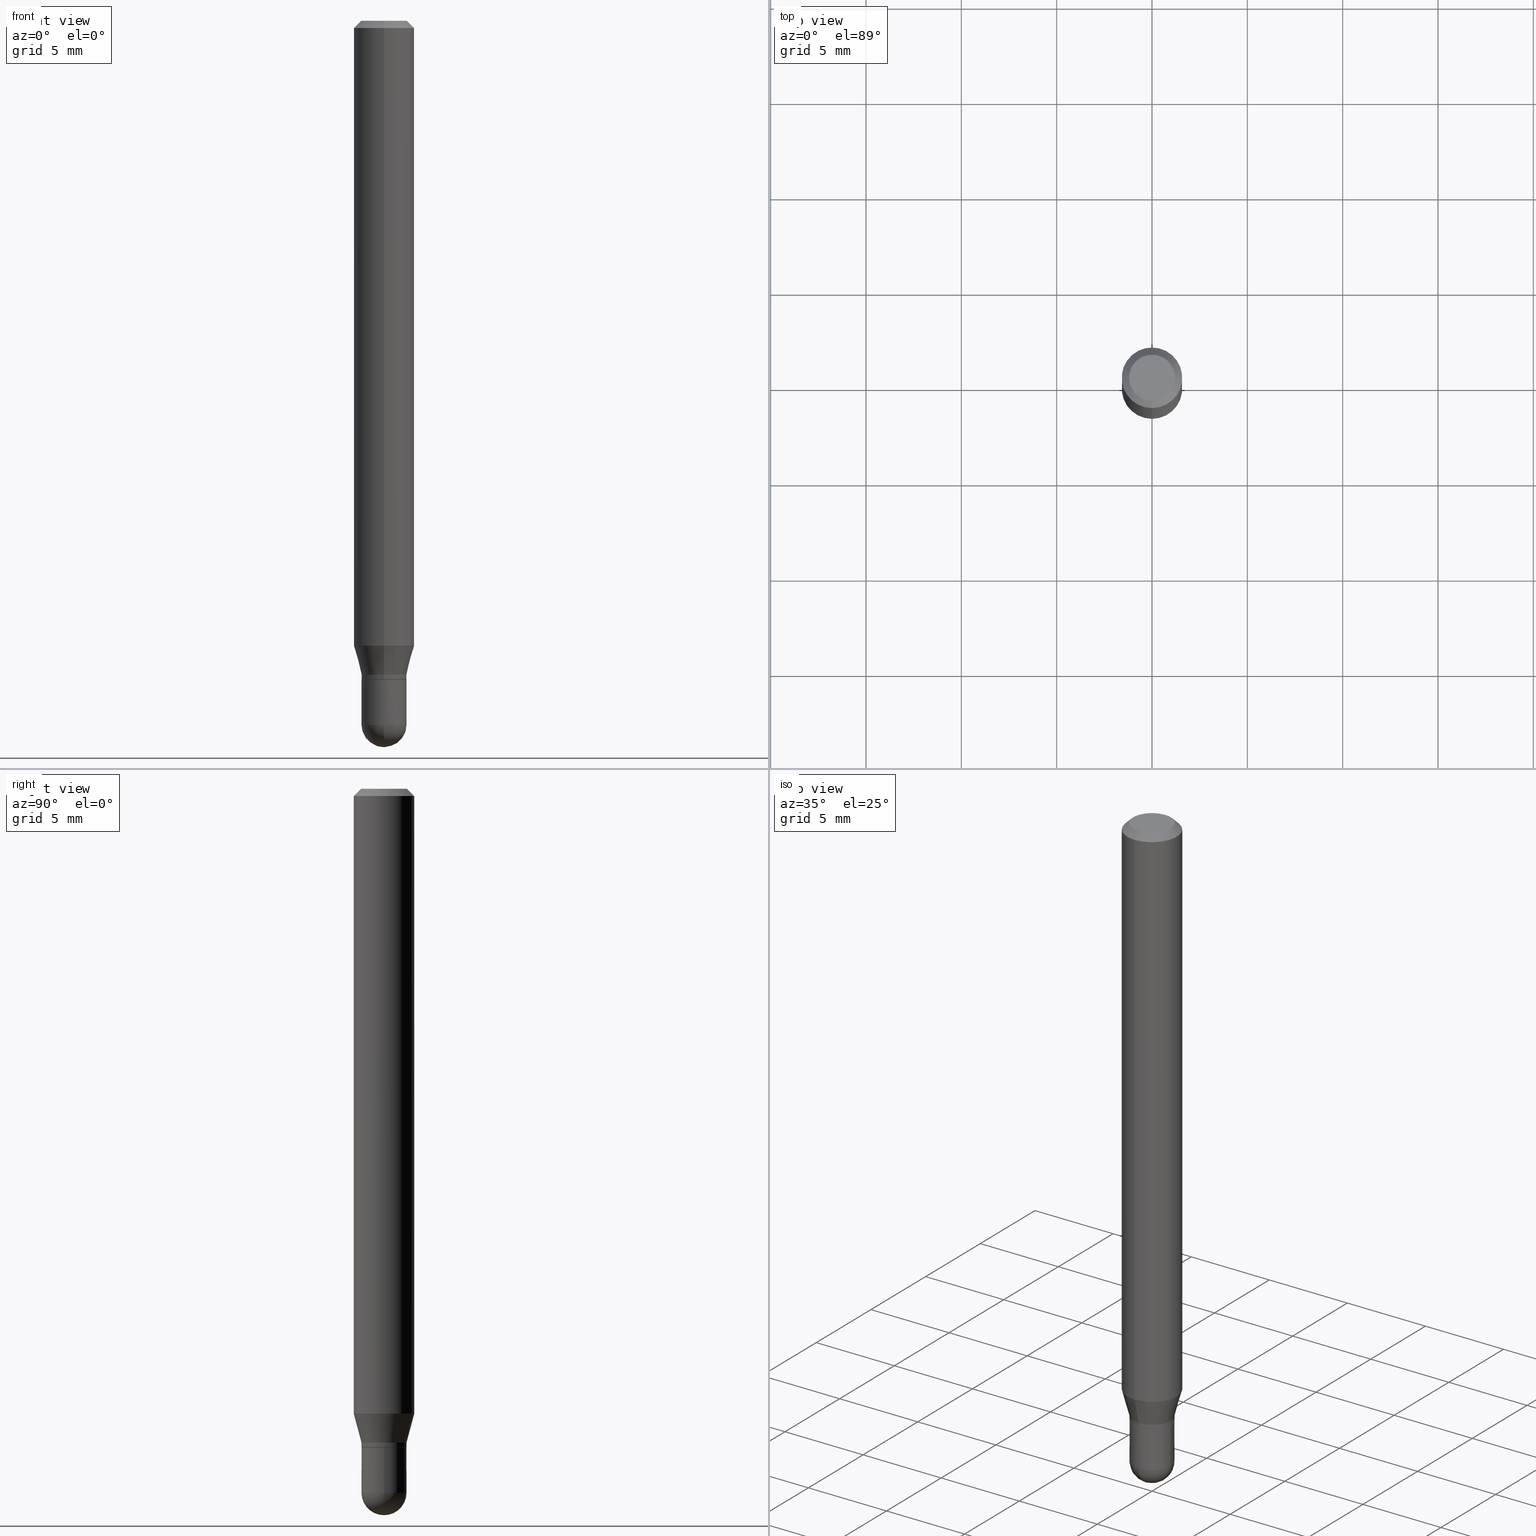
[diagram: canonical four-view strip — front | top / right | iso, engineering-drawing reading convention]
A machine part, canonical four-view strip (front | top / right | iso — engineering-drawing reading convention). The complete STEP part file that produces these views, byte-faithful:
ISO-10303-21;
HEADER;
FILE_DESCRIPTION (( 'STEP AP203' ),
    '1' );
FILE_NAME ('00803.STEP',
    '2024-03-07T18:26:28',
    ( '' ),
    ( '' ),
    'SwSTEP 2.0',
    'SolidWorks 2023',
    '' );
FILE_SCHEMA (( 'CONFIG_CONTROL_DESIGN' ));
ENDSEC;

DATA;
#1 = DIRECTION ( 'NONE',  ( 6.982962677686265922E-15, 1.000000000000000000, -5.874941921858636379E-15 ) ) ;
#2 = CC_DESIGN_PERSON_AND_ORGANIZATION_ASSIGNMENT ( #189, #341, ( #206 ) ) ;
#3 =( CONVERSION_BASED_UNIT ( 'INCH', #158 ) LENGTH_UNIT ( ) NAMED_UNIT ( #434 ) );
#4 = AXIS2_PLACEMENT_3D ( 'NONE', #346, #34, #142 ) ;
#5 = AXIS2_PLACEMENT_3D ( 'NONE', #402, #153, #314 ) ;
#6 = AXIS2_PLACEMENT_3D ( 'NONE', #431, #458, #95 ) ;
#7 = DIRECTION ( 'NONE',  ( 1.000000000000000000, -6.982962677686260400E-15, 0.000000000000000000 ) ) ;
#8 = FACE_OUTER_BOUND ( 'NONE', #49, .T. ) ;
#9 = DIRECTION ( 'NONE',  ( -6.982962677686265922E-15, -1.000000000000000000, 3.483106191921935554E-15 ) ) ;
#10 = AXIS2_PLACEMENT_3D ( 'NONE', #21, #175, #136 ) ;
#11 = ORIENTED_EDGE ( 'NONE', *, *, #430, .F. ) ;
#12 = EDGE_CURVE ( 'NONE', #499, #291, #382, .T. ) ;
#13 = ORIENTED_EDGE ( 'NONE', *, *, #207, .T. ) ;
#14 = ORIENTED_EDGE ( 'NONE', *, *, #192, .T. ) ;
#15 = VECTOR ( 'NONE', #116, 39.37007874015748854 ) ;
#16 = AXIS2_PLACEMENT_3D ( 'NONE', #184, #340, #470 ) ;
#17 = ORIENTED_EDGE ( 'NONE', *, *, #167, .F. ) ;
#18 = DESIGN_CONTEXT ( 'detailed design', #43, 'design' ) ;
#19 = DIRECTION ( 'NONE',  ( -2.445468806185136597E-29, 3.491481338843145583E-15, 1.000000000000000000 ) ) ;
#20 = CARTESIAN_POINT ( 'NONE',  ( -0.04649999999999999967, -4.581239001289149837E-15, -1.360000000000000320 ) ) ;
#21 = CARTESIAN_POINT ( 'NONE',  ( 3.301340040986246399E-29, -4.713561167301768134E-15, -1.350000000000000089 ) ) ;
#22 = ORIENTED_EDGE ( 'NONE', *, *, #32, .F. ) ;
#23 = LINE ( 'NONE', #108, #194 ) ;
#24 = DIRECTION ( 'NONE',  ( -1.000000000000000000, 6.982962677686265922E-15, -4.883557194083111780E-29 ) ) ;
#25 = APPROVAL_ROLE ( '' ) ;
#26 = VECTOR ( 'NONE', #252, 39.37007874015748143 ) ;
#27 = ORIENTED_EDGE ( 'NONE', *, *, #241, .T. ) ;
#28 = VECTOR ( 'NONE', #33, 39.37007874015748143 ) ;
#29 = DIRECTION ( 'NONE',  ( -4.851104656540964275E-15, -0.7071067811865500152, -0.7071067811865450192 ) ) ;
#30 = DIRECTION ( 'NONE',  ( -2.445468806185136597E-29, 3.491481338843145583E-15, 1.000000000000000000 ) ) ;
#31 = ORIENTED_EDGE ( 'NONE', *, *, #430, .T. ) ;
#32 = EDGE_CURVE ( 'NONE', #412, #289, #300, .T. ) ;
#33 = DIRECTION ( 'NONE',  ( -2.445468806185136877E-29, 3.491481338843145188E-15, 1.000000000000000000 ) ) ;
#34 = DIRECTION ( 'NONE',  ( 2.445437067397219192E-29, -3.491526790593902555E-15, -1.000000000000000000 ) ) ;
#35 = DIRECTION ( 'NONE',  ( -2.445468806185136597E-29, 3.491481338843145583E-15, 1.000000000000000000 ) ) ;
#36 = CALENDAR_DATE ( 2024, 7, 3 ) ;
#37 = DIRECTION ( 'NONE',  ( -2.445437067397219472E-29, 3.491526790593902555E-15, 1.000000000000000000 ) ) ;
#38 = CIRCLE ( 'NONE', #10, 0.04649999999999993722 ) ;
#39 = FACE_OUTER_BOUND ( 'NONE', #464, .T. ) ;
#40 = APPROVAL ( #385, 'UNSPECIFIED' ) ;
#41 = CARTESIAN_POINT ( 'NONE',  ( 3.550512386545411977E-29, -5.080562733624547023E-15, -1.453500000000000236 ) ) ;
#42 = LINE ( 'NONE', #281, #15 ) ;
#43 = APPLICATION_CONTEXT ( 'configuration controlled 3d designs of mechanical parts and assemblies' ) ;
#44 = DIRECTION ( 'NONE',  ( -2.445468806185136877E-29, 3.491481338843145188E-15, 1.000000000000000000 ) ) ;
#45 = VECTOR ( 'NONE', #313, 39.37007874015748143 ) ;
#46 =( NAMED_UNIT ( * ) SI_UNIT ( $, .STERADIAN. ) SOLID_ANGLE_UNIT ( ) );
#47 = ORIENTED_EDGE ( 'NONE', *, *, #259, .F. ) ;
#48 = CIRCLE ( 'NONE', #205, 0.04649999999999999967 ) ;
#49 = EDGE_LOOP ( 'NONE', ( #22, #255, #140, #17 ) ) ;
#50 = APPROVAL_DATE_TIME ( #403, #40 ) ;
#51 = SHAPE_DEFINITION_REPRESENTATION ( #214, #231 ) ;
#52 = AXIS2_PLACEMENT_3D ( 'NONE', #237, #37, #199 ) ;
#53 = ORIENTED_EDGE ( 'NONE', *, *, #198, .F. ) ;
#54 = ADVANCED_FACE ( 'NONE', ( #414 ), #457, .F. ) ;
#55 = CARTESIAN_POINT ( 'NONE',  ( 3.155316114870427558E-29, -4.505072281246019250E-15, -1.290287187078897890 ) ) ;
#56 = ORIENTED_EDGE ( 'NONE', *, *, #301, .T. ) ;
#57 = DIRECTION ( 'NONE',  ( -2.445437067397219472E-29, 3.491526790593902555E-15, 1.000000000000000000 ) ) ;
#58 = CARTESIAN_POINT ( 'NONE',  ( 4.440892098500625669E-16, 0.06250000000000000000, -2.182204244121189097E-16 ) ) ;
#59 = VERTEX_POINT ( 'NONE', #190 ) ;
#60 = CYLINDRICAL_SURFACE ( 'NONE', #377, 0.04649999999999993722 ) ;
#61 = CYLINDRICAL_SURFACE ( 'NONE', #162, 0.04649999999999999967 ) ;
#62 = EDGE_LOOP ( 'NONE', ( #148, #14 ) ) ;
#63 = AXIS2_PLACEMENT_3D ( 'NONE', #381, #485, #417 ) ;
#64 = APPROVAL_STATUS ( 'not_yet_approved' ) ;
#65 = EDGE_LOOP ( 'NONE', ( #173, #469, #131, #183 ) ) ;
#66 = FACE_OUTER_BOUND ( 'NONE', #67, .T. ) ;
#67 = EDGE_LOOP ( 'NONE', ( #426, #90, #233, #124, #336 ) ) ;
#68 = EDGE_CURVE ( 'NONE', #499, #412, #465, .T. ) ;
#69 = CARTESIAN_POINT ( 'NONE',  ( 3.554488909790096218E-29, -5.074868126008512823E-15, -1.453500000000000236 ) ) ;
#70 = CARTESIAN_POINT ( 'NONE',  ( 3.668155601095830977E-31, -5.237290185890857728E-17, -0.01500000000000000812 ) ) ;
#71 = AXIS2_PLACEMENT_3D ( 'NONE', #195, #511, #119 ) ;
#72 = VECTOR ( 'NONE', #29, 39.37007874015748143 ) ;
#73 = CC_DESIGN_DATE_AND_TIME_ASSIGNMENT ( #459, #221, ( #488 ) ) ;
#74 = DIRECTION ( 'NONE',  ( -2.445437067397219472E-29, 3.491526790593902555E-15, 1.000000000000000000 ) ) ;
#75 = CARTESIAN_POINT ( 'NONE',  ( -4.364351673553598685E-16, -0.06250000000000446865, -1.290287187078897668 ) ) ;
#76 = PRODUCT ( '00803', '00803', '', ( #109 ) ) ;
#77 = FACE_OUTER_BOUND ( 'NONE', #339, .T. ) ;
#78 = CLOSED_SHELL ( 'NONE', ( #421, #99, #243, #322, #161, #416, #246, #364, #54, #449, #125, #338 ) ) ;
#79 = CIRCLE ( 'NONE', #235, 0.04749999999999999362 ) ;
#80 =( GEOMETRIC_REPRESENTATION_CONTEXT ( 3 ) GLOBAL_UNCERTAINTY_ASSIGNED_CONTEXT ( ( #509 ) ) GLOBAL_UNIT_ASSIGNED_CONTEXT ( ( #3, #480, #46 ) ) REPRESENTATION_CONTEXT ( 'NONE', 'WORKASPACE' ) );
#81 = APPLICATION_PROTOCOL_DEFINITION ( 'international standard', 'config_control_design', 1994, #286 ) ;
#82 = ORIENTED_EDGE ( 'NONE', *, *, #12, .F. ) ;
#83 = FACE_OUTER_BOUND ( 'NONE', #487, .T. ) ;
#84 = EDGE_CURVE ( 'NONE', #226, #409, #147, .T. ) ;
#85 = CARTESIAN_POINT ( 'NONE',  ( 3.554488909790096218E-29, -5.074868126008512823E-15, -1.453500000000000236 ) ) ;
#86 = APPROVAL_PERSON_ORGANIZATION ( #422, #111, #428 ) ;
#87 = ORIENTED_EDGE ( 'NONE', *, *, #32, .T. ) ;
#88 = ORIENTED_EDGE ( 'NONE', *, *, #118, .T. ) ;
#89 = EDGE_CURVE ( 'NONE', #291, #289, #424, .T. ) ;
#90 = ORIENTED_EDGE ( 'NONE', *, *, #146, .T. ) ;
#91 = CARTESIAN_POINT ( 'NONE',  ( 4.440892098500943678E-16, 0.06249999999999995837, -0.01500000000000022669 ) ) ;
#92 = AXIS2_PLACEMENT_3D ( 'NONE', #70, #367, #245 ) ;
#93 = CONICAL_SURFACE ( 'NONE', #283, 0.04649999999999993722, 0.2617993877991500740 ) ;
#94 = VERTEX_POINT ( 'NONE', #370 ) ;
#95 = DIRECTION ( 'NONE',  ( -6.982962677686265133E-15, -1.000000000000000000, 3.491526790593901766E-15 ) ) ;
#96 = DIRECTION ( 'NONE',  ( 6.982962677686265922E-15, 1.000000000000000000, -5.874941921858636379E-15 ) ) ;
#97 = ORIENTED_EDGE ( 'NONE', *, *, #306, .T. ) ;
#98 = CARTESIAN_POINT ( 'NONE',  ( -4.287811248607203282E-16, -0.06250000000000005551, -0.01499999999999979128 ) ) ;
#99 = ADVANCED_FACE ( 'NONE', ( #474 ), #262, .T. ) ;
#100 = DIRECTION ( 'NONE',  ( 1.000000000000000000, -6.982962677686260400E-15, 0.000000000000000000 ) ) ;
#101 = CARTESIAN_POINT ( 'NONE',  ( -3.212162831735349630E-16, -0.04600000000000474543, -1.359999999999999876 ) ) ;
#102 = DIRECTION ( 'NONE',  ( -2.445468806185136597E-29, 3.491481338843145583E-15, 1.000000000000000000 ) ) ;
#103 = CIRCLE ( 'NONE', #319, 0.06250000000000000000 ) ;
#104 = DIRECTION ( 'NONE',  ( -6.982962677686265133E-15, -1.000000000000000000, 5.874941921858638746E-15 ) ) ;
#105 = DIRECTION ( 'NONE',  ( -2.445437067397219472E-29, 3.491526790593902555E-15, 1.000000000000000000 ) ) ;
#106 = COORDINATED_UNIVERSAL_TIME_OFFSET ( 5, 0, .BEHIND. ) ;
#107 = EDGE_LOOP ( 'NONE', ( #376, #87, #483, #82 ) ) ;
#108 = CARTESIAN_POINT ( 'NONE',  ( -3.247077645124109051E-16, -0.04649999999999993722, 1.623559957626162136E-16 ) ) ;
#109 = MECHANICAL_CONTEXT ( 'NONE', #286, 'mechanical' ) ;
#110 = DIRECTION ( 'NONE',  ( -2.445437067397219472E-29, 3.491526790593902555E-15, 1.000000000000000000 ) ) ;
#111 = APPROVAL ( #350, 'UNSPECIFIED' ) ;
#112 = CARTESIAN_POINT ( 'NONE',  ( 0.04649999999999999967, -3.247077645124114474E-16, 2.267422200745110326E-30 ) ) ;
#113 = CARTESIAN_POINT ( 'NONE',  ( 3.550512386545411977E-29, -5.080562733624547023E-15, -1.453500000000000236 ) ) ;
#114 = CLOSED_SHELL ( 'NONE', ( #315, #203, #202, #288, #369 ) ) ;
#115 = EDGE_CURVE ( 'NONE', #226, #222, #42, .T. ) ;
#116 = DIRECTION ( 'NONE',  ( -1.807323732225328562E-15, -0.2588190451025179639, 0.9659258262890690894 ) ) ;
#117 = CALENDAR_DATE ( 2024, 7, 3 ) ;
#118 = EDGE_CURVE ( 'NONE', #494, #244, #444, .T. ) ;
#119 = DIRECTION ( 'NONE',  ( 1.000000000000000000, -6.982962677686260400E-15, 0.000000000000000000 ) ) ;
#120 = DIRECTION ( 'NONE',  ( -6.982962677686265133E-15, -1.000000000000000000, 5.938799986226659171E-15 ) ) ;
#121 = AXIS2_PLACEMENT_3D ( 'NONE', #159, #110, #279 ) ;
#122 = CIRCLE ( 'NONE', #138, 0.04649999999999999967 ) ;
#123 = ORIENTED_EDGE ( 'NONE', *, *, #358, .T. ) ;
#124 = ORIENTED_EDGE ( 'NONE', *, *, #484, .T. ) ;
#125 = ADVANCED_FACE ( 'NONE', ( #8 ), #282, .T. ) ;
#126 = ORIENTED_EDGE ( 'NONE', *, *, #198, .T. ) ;
#127 = AXIS2_PLACEMENT_3D ( 'NONE', #438, #74, #120 ) ;
#128 = CARTESIAN_POINT ( 'NONE',  ( 3.666214947655362494E-29, -5.240069312072735277E-15, -1.500000000000000222 ) ) ;
#129 = AXIS2_PLACEMENT_3D ( 'NONE', #348, #500, #256 ) ;
#130 = APPROVAL_PERSON_ORGANIZATION ( #186, #163, #304 ) ;
#131 = ORIENTED_EDGE ( 'NONE', *, *, #115, .T. ) ;
#132 = ORIENTED_EDGE ( 'NONE', *, *, #182, .F. ) ;
#133 = DIRECTION ( 'NONE',  ( 6.982962677686265922E-15, 1.000000000000000000, -3.483106191921935554E-15 ) ) ;
#134 = ORIENTED_EDGE ( 'NONE', *, *, #482, .F. ) ;
#135 = FACE_OUTER_BOUND ( 'NONE', #213, .T. ) ;
#136 = DIRECTION ( 'NONE',  ( -6.982962677686265133E-15, -1.000000000000000000, 5.874941921858638746E-15 ) ) ;
#137 = CALENDAR_DATE ( 2024, 7, 3 ) ;
#138 = AXIS2_PLACEMENT_3D ( 'NONE', #452, #169, #100 ) ;
#139 = AXIS2_PLACEMENT_3D ( 'NONE', #391, #232, #397 ) ;
#140 = ORIENTED_EDGE ( 'NONE', *, *, #12, .T. ) ;
#141 = CARTESIAN_POINT ( 'NONE',  ( -4.364351673553912750E-16, -0.06250000000000005551, -0.01499999999999979128 ) ) ;
#142 = DIRECTION ( 'NONE',  ( 6.982962677686265922E-15, 1.000000000000000000, -3.491526790593902555E-15 ) ) ;
#143 = CARTESIAN_POINT ( 'NONE',  ( 3.325837576411786624E-29, -4.748414620826679034E-15, -1.360000000000000320 ) ) ;
#144 = CARTESIAN_POINT ( 'NONE',  ( 3.301340040986246399E-29, -4.713561167301768134E-15, -1.350000000000000089 ) ) ;
#145 = LINE ( 'NONE', #356, #272 ) ;
#146 = EDGE_CURVE ( 'NONE', #446, #208, #365, .T. ) ;
#147 = CIRCLE ( 'NONE', #318, 0.04649999999999993722 ) ;
#148 = ORIENTED_EDGE ( 'NONE', *, *, #293, .T. ) ;
#149 = CC_DESIGN_SECURITY_CLASSIFICATION ( #488, ( #206 ) ) ;
#150 = FACE_OUTER_BOUND ( 'NONE', #405, .T. ) ;
#151 = PERSON_AND_ORGANIZATION_ROLE ( 'classification_officer' ) ;
#152 = EDGE_CURVE ( 'NONE', #373, #244, #250, .T. ) ;
#153 = DIRECTION ( 'NONE',  ( -2.445437067397219472E-29, 3.491526790593902555E-15, 1.000000000000000000 ) ) ;
#154 = LINE ( 'NONE', #112, #378 ) ;
#155 = DIRECTION ( 'NONE',  ( -2.445468806185136597E-29, 3.491481338843145583E-15, 1.000000000000000000 ) ) ;
#156 = CARTESIAN_POINT ( 'NONE',  ( 3.554488909790096218E-29, -5.074868126008512823E-15, -1.453500000000000236 ) ) ;
#157 = LOCAL_TIME ( 13, 26, 28.00000000000000000, #362 ) ;
#158 = LENGTH_MEASURE_WITH_UNIT ( LENGTH_MEASURE( 0.02539999999999999897 ), #274 );
#159 = CARTESIAN_POINT ( 'NONE',  ( 3.325794411660219222E-29, -4.748476435207708706E-15, -1.360000000000000320 ) ) ;
#160 = CARTESIAN_POINT ( 'NONE',  ( -3.773273898774340269E-16, -0.04749999999999999362, 1.569893619195402252E-16 ) ) ;
#161 = ADVANCED_FACE ( 'NONE', ( #77 ), #93, .T. ) ;
#162 = AXIS2_PLACEMENT_3D ( 'NONE', #280, #19, #354 ) ;
#163 = APPROVAL ( #64, 'UNSPECIFIED' ) ;
#164 = ORIENTED_EDGE ( 'NONE', *, *, #275, .F. ) ;
#165 = ORIENTED_EDGE ( 'NONE', *, *, #327, .T. ) ;
#166 = ORIENTED_EDGE ( 'NONE', *, *, #275, .T. ) ;
#167 = EDGE_CURVE ( 'NONE', #289, #291, #478, .T. ) ;
#168 = CIRCLE ( 'NONE', #324, 0.04649999999999999967 ) ;
#169 = DIRECTION ( 'NONE',  ( -2.445468806185136597E-29, 3.491481338843145583E-15, 1.000000000000000000 ) ) ;
#170 = LOCAL_TIME ( 13, 26, 28.00000000000000000, #493 ) ;
#171 = EDGE_LOOP ( 'NONE', ( #56, #27 ) ) ;
#172 = DIRECTION ( 'NONE',  ( -2.445437067397219472E-29, 3.491526790593902555E-15, 1.000000000000000000 ) ) ;
#173 = ORIENTED_EDGE ( 'NONE', *, *, #306, .F. ) ;
#174 = DIRECTION ( 'NONE',  ( -6.982962677686265133E-15, -1.000000000000000000, 5.874941921858638746E-15 ) ) ;
#175 = DIRECTION ( 'NONE',  ( -2.445437067397219472E-29, 3.491526790593902555E-15, 1.000000000000000000 ) ) ;
#176 = CALENDAR_DATE ( 2024, 7, 3 ) ;
#177 = EDGE_LOOP ( 'NONE', ( #53, #342, #260, #132 ) ) ;
#178 = CARTESIAN_POINT ( 'NONE',  ( -0.04649999999999999967, 3.304023721284465841E-16, -2.287304816968531530E-30 ) ) ;
#179 = DIRECTION ( 'NONE',  ( -6.982962677686265922E-15, -1.000000000000000000, 4.370956789862821150E-15 ) ) ;
#180 = CIRCLE ( 'NONE', #366, 0.04599999999999999922 ) ;
#181 = APPROVAL_PERSON_ORGANIZATION ( #299, #40, #25 ) ;
#182 = EDGE_CURVE ( 'NONE', #208, #312, #343, .T. ) ;
#183 = ORIENTED_EDGE ( 'NONE', *, *, #236, .F. ) ;
#184 = CARTESIAN_POINT ( 'NONE',  ( 0.000000000000000000, 0.000000000000000000, 0.000000000000000000 ) ) ;
#185 = LINE ( 'NONE', #307, #406 ) ;
#186 = PERSON_AND_ORGANIZATION ( #278, #437 ) ;
#187 = CARTESIAN_POINT ( 'NONE',  ( 3.325794411660219222E-29, -4.748476435207708706E-15, -1.360000000000000320 ) ) ;
#188 = DIRECTION ( 'NONE',  ( -6.982962677686265133E-15, -1.000000000000000000, 5.938799986226659171E-15 ) ) ;
#189 = PERSON_AND_ORGANIZATION ( #278, #437 ) ;
#190 = CARTESIAN_POINT ( 'NONE',  ( 4.440892098500942692E-16, 0.06249999999999552441, -1.290287187078898112 ) ) ;
#191 = CARTESIAN_POINT ( 'NONE',  ( -4.364351673553916201E-16, -0.06250000000000000000, 2.182204244121189097E-16 ) ) ;
#192 = EDGE_CURVE ( 'NONE', #481, #494, #225, .T. ) ;
#193 = PERSON_AND_ORGANIZATION ( #278, #437 ) ;
#194 = VECTOR ( 'NONE', #105, 39.37007874015748143 ) ;
#195 = CARTESIAN_POINT ( 'NONE',  ( 3.554488909790096218E-29, -5.074868126008512823E-15, -1.453500000000000236 ) ) ;
#196 = CARTESIAN_POINT ( 'NONE',  ( 3.550512386545411977E-29, -5.080562733624547023E-15, -1.453500000000000236 ) ) ;
#197 = DIRECTION ( 'NONE',  ( -1.000000000000000000, 6.982962677686265922E-15, -4.876176775795935793E-29 ) ) ;
#198 = EDGE_CURVE ( 'NONE', #287, #208, #387, .T. ) ;
#199 = DIRECTION ( 'NONE',  ( -6.982962677686266711E-15, -1.000000000000000000, 5.874941921858640324E-15 ) ) ;
#200 = AXIS2_PLACEMENT_3D ( 'NONE', #472, #240, #197 ) ;
#201 = DIRECTION ( 'NONE',  ( -2.445437067397219192E-29, 3.491526790593902555E-15, 1.000000000000000000 ) ) ;
#202 = ADVANCED_FACE ( 'NONE', ( #441 ), #401, .F. ) ;
#203 = ADVANCED_FACE ( 'NONE', ( #39 ), #440, .T. ) ;
#204 = EDGE_LOOP ( 'NONE', ( #164, #247, #31, #242 ) ) ;
#205 = AXIS2_PLACEMENT_3D ( 'NONE', #143, #30, #501 ) ;
#206 = PRODUCT_DEFINITION_FORMATION_WITH_SPECIFIED_SOURCE ( 'ANY', '', #76, .NOT_KNOWN. ) ;
#207 = EDGE_CURVE ( 'NONE', #94, #446, #486, .T. ) ;
#208 = VERTEX_POINT ( 'NONE', #404 ) ;
#209 = CC_DESIGN_DATE_AND_TIME_ASSIGNMENT ( #498, #308, ( #361 ) ) ;
#210 = FACE_OUTER_BOUND ( 'NONE', #177, .T. ) ;
#211 = ORIENTED_EDGE ( 'NONE', *, *, #293, .F. ) ;
#212 = AXIS2_PLACEMENT_3D ( 'NONE', #267, #273, #359 ) ;
#213 = EDGE_LOOP ( 'NONE', ( #329, #325, #123, #47 ) ) ;
#214 = PRODUCT_DEFINITION_SHAPE ( 'NONE', 'NONE',  #361 ) ;
#215 = FACE_OUTER_BOUND ( 'NONE', #204, .T. ) ;
#216 = DATE_AND_TIME ( #502, #496 ) ;
#217 = ORIENTED_EDGE ( 'NONE', *, *, #347, .F. ) ;
#218 = DIRECTION ( 'NONE',  ( -2.445437067397219472E-29, 3.491526790593902555E-15, 1.000000000000000000 ) ) ;
#219 = LINE ( 'NONE', #58, #332 ) ;
#220 = CC_DESIGN_PERSON_AND_ORGANIZATION_ASSIGNMENT ( #353, #463, ( #361 ) ) ;
#221 = DATE_TIME_ROLE ( 'classification_date' ) ;
#222 = VERTEX_POINT ( 'NONE', #75 ) ;
#223 = DIRECTION ( 'NONE',  ( 1.000000000000000000, -6.982962677686260400E-15, 0.000000000000000000 ) ) ;
#224 = DIRECTION ( 'NONE',  ( -6.982962677686266711E-15, -1.000000000000000000, 3.491526790593902949E-15 ) ) ;
#225 = CIRCLE ( 'NONE', #5, 0.04749999999999999362 ) ;
#226 = VERTEX_POINT ( 'NONE', #239 ) ;
#227 = LINE ( 'NONE', #178, #28 ) ;
#228 = EDGE_LOOP ( 'NONE', ( #13, #506, #375, #407, #269 ) ) ;
#229 = EDGE_CURVE ( 'NONE', #222, #59, #251, .T. ) ;
#230 = CARTESIAN_POINT ( 'NONE',  ( 3.301340040986246399E-29, -4.713561167301768134E-15, -1.350000000000000089 ) ) ;
#231 = ADVANCED_BREP_SHAPE_REPRESENTATION ( '00803', ( #432, #261, #139 ), #80 ) ;
#232 = DIRECTION ( 'NONE',  ( 0.000000000000000000, 0.000000000000000000, 1.000000000000000000 ) ) ;
#233 = ORIENTED_EDGE ( 'NONE', *, *, #182, .T. ) ;
#234 = DIRECTION ( 'NONE',  ( -6.982962677686265922E-15, -1.000000000000000000, 3.491526790593902555E-15 ) ) ;
#235 = AXIS2_PLACEMENT_3D ( 'NONE', #462, #389, #224 ) ;
#236 = EDGE_CURVE ( 'NONE', #59, #222, #103, .T. ) ;
#237 = CARTESIAN_POINT ( 'NONE',  ( 3.324571693126520441E-29, -4.746730671812411480E-15, -1.359500000000000375 ) ) ;
#238 = CC_DESIGN_PERSON_AND_ORGANIZATION_ASSIGNMENT ( #193, #468, ( #76 ) ) ;
#239 = CARTESIAN_POINT ( 'NONE',  ( -3.247077645123779208E-16, -0.04650000000000464873, -1.349999999999999867 ) ) ;
#240 = DIRECTION ( 'NONE',  ( 2.438088387897960049E-29, -3.491481338843145188E-15, -1.000000000000000000 ) ) ;
#241 = EDGE_CURVE ( 'NONE', #448, #450, #122, .T. ) ;
#242 = ORIENTED_EDGE ( 'NONE', *, *, #479, .F. ) ;
#243 = ADVANCED_FACE ( 'NONE', ( #335 ), #436, .T. ) ;
#244 = VERTEX_POINT ( 'NONE', #91 ) ;
#245 = DIRECTION ( 'NONE',  ( -6.982962677686265922E-15, -1.000000000000000000, 3.483106191921935554E-15 ) ) ;
#246 = ADVANCED_FACE ( 'NONE', ( #215 ), #345, .T. ) ;
#247 = ORIENTED_EDGE ( 'NONE', *, *, #236, .T. ) ;
#248 = ORIENTED_EDGE ( 'NONE', *, *, #358, .F. ) ;
#249 = ORIENTED_EDGE ( 'NONE', *, *, #68, .F. ) ;
#250 = CIRCLE ( 'NONE', #92, 0.06250000000000000000 ) ;
#251 = CIRCLE ( 'NONE', #495, 0.06250000000000000000 ) ;
#252 = DIRECTION ( 'NONE',  ( 5.024295867788190974E-15, 0.7071067811865681119, 0.7071067811865270336 ) ) ;
#253 = CARTESIAN_POINT ( 'NONE',  ( -3.247077645123767868E-16, -0.04650000000000455852, -1.359500000000000153 ) ) ;
#254 = APPROVAL_DATE_TIME ( #216, #163 ) ;
#255 = ORIENTED_EDGE ( 'NONE', *, *, #347, .T. ) ;
#256 = DIRECTION ( 'NONE',  ( 6.982962677686265922E-15, 1.000000000000000000, -3.483106191921935554E-15 ) ) ;
#257 = CARTESIAN_POINT ( 'NONE',  ( 0.04649999999999999967, -5.236349137930007031E-15, -1.453500000000000236 ) ) ;
#258 = DATE_AND_TIME ( #36, #333 ) ;
#259 = EDGE_CURVE ( 'NONE', #409, #226, #38, .T. ) ;
#260 = ORIENTED_EDGE ( 'NONE', *, *, #334, .F. ) ;
#261 = MANIFOLD_SOLID_BREP ( 'Body-Move/Copy2[2]', #78 ) ;
#262 = CONICAL_SURFACE ( 'NONE', #127, 0.04599999999999999922, 0.7853981633974739252 ) ;
#263 = AXIS2_PLACEMENT_3D ( 'NONE', #230, #504, #174 ) ;
#264 = APPROVAL_DATE_TIME ( #258, #111 ) ;
#265 = AXIS2_PLACEMENT_3D ( 'NONE', #113, #363, #1 ) ;
#266 = CIRCLE ( 'NONE', #284, 0.06250000000000000000 ) ;
#267 = CARTESIAN_POINT ( 'NONE',  ( 3.324571693126520441E-29, -4.746730671812411480E-15, -1.359500000000000375 ) ) ;
#268 = DIRECTION ( 'NONE',  ( 1.000000000000000000, -6.982962677686267499E-15, 4.876176775795936353E-29 ) ) ;
#269 = ORIENTED_EDGE ( 'NONE', *, *, #334, .T. ) ;
#270 = COORDINATED_UNIVERSAL_TIME_OFFSET ( 5, 0, .BEHIND. ) ;
#271 = DIRECTION ( 'NONE',  ( -1.000000000000000000, 7.105427357601001070E-15, -4.926315508542082329E-29 ) ) ;
#272 = VECTOR ( 'NONE', #57, 39.37007874015748143 ) ;
#273 = DIRECTION ( 'NONE',  ( -2.445437067397219472E-29, 3.491526790593902555E-15, 1.000000000000000000 ) ) ;
#274 =( LENGTH_UNIT ( ) NAMED_UNIT ( * ) SI_UNIT ( $, .METRE. ) );
#275 = EDGE_CURVE ( 'NONE', #59, #244, #219, .T. ) ;
#276 = CARTESIAN_POINT ( 'NONE',  ( 4.364351673553919652E-16, 0.06249999999999995143, -0.01500000000000022669 ) ) ;
#277 = CARTESIAN_POINT ( 'NONE',  ( 3.668155601095830977E-31, -5.237290185890857728E-17, -0.01500000000000000812 ) ) ;
#278 = PERSON ( 'UNSPECIFIED', 'UNSPECIFIED', 'UNSPECIFIED', ('UNSPECIFIED'), ('UNSPECIFIED'), ('UNSPECIFIED') ) ;
#279 = DIRECTION ( 'NONE',  ( -6.982962677686265133E-15, -1.000000000000000000, 5.938799986226659171E-15 ) ) ;
#280 = CARTESIAN_POINT ( 'NONE',  ( 0.000000000000000000, 0.000000000000000000, 0.000000000000000000 ) ) ;
#281 = CARTESIAN_POINT ( 'NONE',  ( -3.247077645123779208E-16, -0.04650000000000464873, -1.349999999999999867 ) ) ;
#282 = CONICAL_SURFACE ( 'NONE', #121, 0.04599999999999999922, 0.7853981633974739252 ) ;
#283 = AXIS2_PLACEMENT_3D ( 'NONE', #323, #475, #316 ) ;
#284 = AXIS2_PLACEMENT_3D ( 'NONE', #277, #371, #9 ) ;
#285 = ORIENTED_EDGE ( 'NONE', *, *, #229, .F. ) ;
#286 = APPLICATION_CONTEXT ( 'configuration controlled 3d designs of mechanical parts and assemblies' ) ;
#287 = VERTEX_POINT ( 'NONE', #128 ) ;
#288 = ADVANCED_FACE ( 'NONE', ( #210 ), #384, .T. ) ;
#289 = VERTEX_POINT ( 'NONE', #297 ) ;
#290 = AXIS2_PLACEMENT_3D ( 'NONE', #455, #24, #96 ) ;
#291 = VERTEX_POINT ( 'NONE', #253 ) ;
#292 = ORIENTED_EDGE ( 'NONE', *, *, #479, .T. ) ;
#293 = EDGE_CURVE ( 'NONE', #494, #481, #79, .T. ) ;
#294 = ORIENTED_EDGE ( 'NONE', *, *, #146, .F. ) ;
#295 = AXIS2_PLACEMENT_3D ( 'NONE', #41, #271, #433 ) ;
#296 = CARTESIAN_POINT ( 'NONE',  ( 0.000000000000000000, 0.000000000000000000, 0.000000000000000000 ) ) ;
#297 = CARTESIAN_POINT ( 'NONE',  ( 3.304023721284800120E-16, 0.04649999999999528816, -1.359500000000000597 ) ) ;
#298 = AXIS2_PLACEMENT_3D ( 'NONE', #492, #201, #234 ) ;
#299 = PERSON_AND_ORGANIZATION ( #278, #437 ) ;
#300 = LINE ( 'NONE', #392, #26 ) ;
#301 = EDGE_CURVE ( 'NONE', #450, #448, #48, .T. ) ;
#302 = CYLINDRICAL_SURFACE ( 'NONE', #6, 0.04649999999999993722 ) ;
#303 = CARTESIAN_POINT ( 'NONE',  ( 3.155316114870427558E-29, -4.505072281246019250E-15, -1.290287187078897890 ) ) ;
#304 = APPROVAL_ROLE ( '' ) ;
#305 = DIRECTION ( 'NONE',  ( -2.445437067397219472E-29, 3.491526790593902555E-15, 1.000000000000000000 ) ) ;
#306 = EDGE_CURVE ( 'NONE', #409, #59, #185, .T. ) ;
#307 = CARTESIAN_POINT ( 'NONE',  ( 3.304023721284790753E-16, 0.04649999999999521877, -1.350000000000000311 ) ) ;
#308 = DATE_TIME_ROLE ( 'creation_date' ) ;
#309 = DIRECTION ( 'NONE',  ( -2.445437067397219472E-29, 3.491526790593902555E-15, 1.000000000000000000 ) ) ;
#310 = LINE ( 'NONE', #98, #72 ) ;
#311 = VECTOR ( 'NONE', #471, 39.37007874015748143 ) ;
#312 = VERTEX_POINT ( 'NONE', #257 ) ;
#313 = DIRECTION ( 'NONE',  ( -2.445437067397219472E-29, 3.491526790593902555E-15, 1.000000000000000000 ) ) ;
#314 = DIRECTION ( 'NONE',  ( -6.982962677686266711E-15, -1.000000000000000000, 3.491526790593902949E-15 ) ) ;
#315 = ADVANCED_FACE ( 'NONE', ( #420 ), #61, .T. ) ;
#316 = DIRECTION ( 'NONE',  ( -6.982962677686265133E-15, -1.000000000000000000, 5.874941921858638746E-15 ) ) ;
#317 = CARTESIAN_POINT ( 'NONE',  ( -3.212162831735349630E-16, -0.04600000000000474543, -1.359999999999999876 ) ) ;
#318 = AXIS2_PLACEMENT_3D ( 'NONE', #144, #309, #104 ) ;
#319 = AXIS2_PLACEMENT_3D ( 'NONE', #55, #172, #179 ) ;
#320 = DIRECTION ( 'NONE',  ( -2.445468806185136597E-29, 3.491481338843145583E-15, 1.000000000000000000 ) ) ;
#321 = LOCAL_TIME ( 13, 26, 28.00000000000000000, #106 ) ;
#322 = ADVANCED_FACE ( 'NONE', ( #83 ), #415, .T. ) ;
#323 = CARTESIAN_POINT ( 'NONE',  ( 3.301340040986246399E-29, -4.713561167301768134E-15, -1.350000000000000089 ) ) ;
#324 = AXIS2_PLACEMENT_3D ( 'NONE', #69, #35, #223 ) ;
#325 = ORIENTED_EDGE ( 'NONE', *, *, #167, .T. ) ;
#326 = CC_DESIGN_APPROVAL ( #163, ( #361 ) ) ;
#327 = EDGE_CURVE ( 'NONE', #289, #409, #145, .T. ) ;
#328 = ORIENTED_EDGE ( 'NONE', *, *, #84, .F. ) ;
#329 = ORIENTED_EDGE ( 'NONE', *, *, #327, .F. ) ;
#330 = CC_DESIGN_PERSON_AND_ORGANIZATION_ASSIGNMENT ( #510, #151, ( #488 ) ) ;
#331 = CARTESIAN_POINT ( 'NONE',  ( 3.668155601095830977E-31, -5.237290185890857728E-17, -0.01500000000000000812 ) ) ;
#332 = VECTOR ( 'NONE', #497, 39.37007874015748143 ) ;
#333 = LOCAL_TIME ( 13, 26, 28.00000000000000000, #505 ) ;
#334 = EDGE_CURVE ( 'NONE', #312, #94, #168, .T. ) ;
#335 = FACE_OUTER_BOUND ( 'NONE', #355, .T. ) ;
#336 = ORIENTED_EDGE ( 'NONE', *, *, #241, .F. ) ;
#337 = DIRECTION ( 'NONE',  ( -2.445437067397219472E-29, 3.491526790593902555E-15, 1.000000000000000000 ) ) ;
#338 = ADVANCED_FACE ( 'NONE', ( #135 ), #60, .T. ) ;
#339 = EDGE_LOOP ( 'NONE', ( #491, #97, #285, #395 ) ) ;
#340 = DIRECTION ( 'NONE',  ( -2.445437067397219472E-29, 3.491526790593902555E-15, 1.000000000000000000 ) ) ;
#341 = PERSON_AND_ORGANIZATION_ROLE ( 'design_supplier' ) ;
#342 = ORIENTED_EDGE ( 'NONE', *, *, #482, .T. ) ;
#343 = CIRCLE ( 'NONE', #71, 0.04649999999999999967 ) ;
#344 = FACE_OUTER_BOUND ( 'NONE', #351, .T. ) ;
#345 = CYLINDRICAL_SURFACE ( 'NONE', #63, 0.06250000000000000000 ) ;
#346 = CARTESIAN_POINT ( 'NONE',  ( 3.316907271900976096E-16, 0.04749999999999999362, -1.702766028700454538E-16 ) ) ;
#347 = EDGE_CURVE ( 'NONE', #412, #499, #180, .T. ) ;
#348 = CARTESIAN_POINT ( 'NONE',  ( 3.668155601095830977E-31, -5.237290185890857728E-17, -0.01500000000000000812 ) ) ;
#349 = DIRECTION ( 'NONE',  ( 1.839019923739598738E-15, 0.2588190451025247363, 0.9659258262890673130 ) ) ;
#350 = APPROVAL_STATUS ( 'not_yet_approved' ) ;
#351 = EDGE_LOOP ( 'NONE', ( #386, #165, #328, #248 ) ) ;
#352 = DIRECTION ( 'NONE',  ( -6.982962677686265133E-15, -1.000000000000000000, 3.491526790593901766E-15 ) ) ;
#353 = PERSON_AND_ORGANIZATION ( #278, #437 ) ;
#354 = DIRECTION ( 'NONE',  ( 1.000000000000000000, -6.982962677686267499E-15, 4.876176775795936353E-29 ) ) ;
#355 = EDGE_LOOP ( 'NONE', ( #423, #379, #460, #374 ) ) ;
#356 = CARTESIAN_POINT ( 'NONE',  ( 3.304023721284460417E-16, 0.04649999999999993722, -1.623559957626162136E-16 ) ) ;
#357 = SECURITY_CLASSIFICATION_LEVEL ( 'unclassified' ) ;
#358 = EDGE_CURVE ( 'NONE', #291, #226, #23, .T. ) ;
#359 = DIRECTION ( 'NONE',  ( -6.982962677686266711E-15, -1.000000000000000000, 5.874941921858640324E-15 ) ) ;
#360 = DIRECTION ( 'NONE',  ( 1.000000000000000000, -6.982962677686265922E-15, 4.883557194083112340E-29 ) ) ;
#361 = PRODUCT_DEFINITION ( 'UNKNOWN', '', #206, #18 ) ;
#362 = COORDINATED_UNIVERSAL_TIME_OFFSET ( 5, 0, .BEHIND. ) ;
#363 = DIRECTION ( 'NONE',  ( -1.000000000000000000, 6.982962677686265922E-15, -4.883557194083111780E-29 ) ) ;
#364 = ADVANCED_FACE ( 'NONE', ( #150 ), #442, .T. ) ;
#365 = CIRCLE ( 'NONE', #411, 0.04649999999999999967 ) ;
#366 = AXIS2_PLACEMENT_3D ( 'NONE', #427, #218, #188 ) ;
#367 = DIRECTION ( 'NONE',  ( -2.445437067397219472E-29, 3.491526790593902555E-15, 1.000000000000000000 ) ) ;
#368 = CC_DESIGN_APPROVAL ( #111, ( #206 ) ) ;
#369 = ADVANCED_FACE ( 'NONE', ( #66 ), #454, .T. ) ;
#370 = CARTESIAN_POINT ( 'NONE',  ( 3.247077645124467489E-16, 0.04649999999999489958, -1.453500000000000458 ) ) ;
#371 = DIRECTION ( 'NONE',  ( -2.445437067397219472E-29, 3.491526790593902555E-15, 1.000000000000000000 ) ) ;
#372 = AXIS2_PLACEMENT_3D ( 'NONE', #331, #490, #133 ) ;
#373 = VERTEX_POINT ( 'NONE', #141 ) ;
#374 = ORIENTED_EDGE ( 'NONE', *, *, #118, .F. ) ;
#375 = ORIENTED_EDGE ( 'NONE', *, *, #301, .F. ) ;
#376 = ORIENTED_EDGE ( 'NONE', *, *, #68, .T. ) ;
#377 = AXIS2_PLACEMENT_3D ( 'NONE', #296, #396, #352 ) ;
#378 = VECTOR ( 'NONE', #44, 39.37007874015748143 ) ;
#379 = ORIENTED_EDGE ( 'NONE', *, *, #445, .T. ) ;
#380 = CARTESIAN_POINT ( 'NONE',  ( -0.04649999999999999967, -4.581239001289149837E-15, -1.453500000000000236 ) ) ;
#381 = CARTESIAN_POINT ( 'NONE',  ( 0.000000000000000000, 0.000000000000000000, 0.000000000000000000 ) ) ;
#382 = LINE ( 'NONE', #101, #477 ) ;
#383 = CARTESIAN_POINT ( 'NONE',  ( 3.872457909892865983E-16, 0.04649999999999521877, -1.350000000000000311 ) ) ;
#384 = SPHERICAL_SURFACE ( 'NONE', #290, 0.04649999999999995109 ) ;
#385 = APPROVAL_STATUS ( 'not_yet_approved' ) ;
#386 = ORIENTED_EDGE ( 'NONE', *, *, #89, .T. ) ;
#387 = CIRCLE ( 'NONE', #295, 0.04649999999999995109 ) ;
#388 = LINE ( 'NONE', #191, #45 ) ;
#389 = DIRECTION ( 'NONE',  ( -2.445437067397219472E-29, 3.491526790593902555E-15, 1.000000000000000000 ) ) ;
#390 = CIRCLE ( 'NONE', #443, 0.04649999999999995109 ) ;
#391 = CARTESIAN_POINT ( 'NONE',  ( 0.000000000000000000, 0.000000000000000000, 0.000000000000000000 ) ) ;
#392 = CARTESIAN_POINT ( 'NONE',  ( 3.268496584496792614E-16, 0.04599999999999525302, -1.360000000000000542 ) ) ;
#393 = FACE_OUTER_BOUND ( 'NONE', #65, .T. ) ;
#394 = PERSON_AND_ORGANIZATION_ROLE ( 'creator' ) ;
#395 = ORIENTED_EDGE ( 'NONE', *, *, #115, .F. ) ;
#396 = DIRECTION ( 'NONE',  ( -2.445437067397219472E-29, 3.491526790593902555E-15, 1.000000000000000000 ) ) ;
#397 = DIRECTION ( 'NONE',  ( 1.000000000000000000, 0.000000000000000000, 0.000000000000000000 ) ) ;
#398 = ORIENTED_EDGE ( 'NONE', *, *, #207, .F. ) ;
#399 = EDGE_CURVE ( 'NONE', #446, #448, #227, .T. ) ;
#400 = AXIS2_PLACEMENT_3D ( 'NONE', #461, #102, #268 ) ;
#401 = PLANE ( 'NONE',  #200 ) ;
#402 = CARTESIAN_POINT ( 'NONE',  ( 2.166207436253580502E-46, -3.092850516784356594E-32, -8.858160633670141160E-18 ) ) ;
#403 = DATE_AND_TIME ( #117, #157 ) ;
#404 = CARTESIAN_POINT ( 'NONE',  ( -3.304023721284108388E-16, -0.04650000000000505812, -1.453500000000000014 ) ) ;
#405 = EDGE_LOOP ( 'NONE', ( #451, #211, #88, #292 ) ) ;
#406 = VECTOR ( 'NONE', #349, 39.37007874015748854 ) ;
#407 = ORIENTED_EDGE ( 'NONE', *, *, #484, .F. ) ;
#408 = CC_DESIGN_APPROVAL ( #40, ( #488 ) ) ;
#409 = VERTEX_POINT ( 'NONE', #383 ) ;
#410 = DIRECTION ( 'NONE',  ( -6.982962677686265922E-15, -1.000000000000000000, 4.370956789862821150E-15 ) ) ;
#411 = AXIS2_PLACEMENT_3D ( 'NONE', #85, #155, #7 ) ;
#412 = VERTEX_POINT ( 'NONE', #508 ) ;
#413 = CONICAL_SURFACE ( 'NONE', #263, 0.04649999999999993722, 0.2617993877991500740 ) ;
#414 = FACE_OUTER_BOUND ( 'NONE', #62, .T. ) ;
#415 = CYLINDRICAL_SURFACE ( 'NONE', #16, 0.06250000000000000000 ) ;
#416 = ADVANCED_FACE ( 'NONE', ( #393 ), #413, .T. ) ;
#417 = DIRECTION ( 'NONE',  ( -6.982962677686265922E-15, -1.000000000000000000, 3.491526790593902555E-15 ) ) ;
#418 = ORIENTED_EDGE ( 'NONE', *, *, #152, .F. ) ;
#419 = FACE_OUTER_BOUND ( 'NONE', #429, .T. ) ;
#420 = FACE_OUTER_BOUND ( 'NONE', #228, .T. ) ;
#421 = ADVANCED_FACE ( 'NONE', ( #344 ), #302, .T. ) ;
#422 = PERSON_AND_ORGANIZATION ( #278, #437 ) ;
#423 = ORIENTED_EDGE ( 'NONE', *, *, #192, .F. ) ;
#424 = CIRCLE ( 'NONE', #212, 0.04649999999999992334 ) ;
#425 = PERSON_AND_ORGANIZATION ( #278, #437 ) ;
#426 = ORIENTED_EDGE ( 'NONE', *, *, #399, .F. ) ;
#427 = CARTESIAN_POINT ( 'NONE',  ( 3.325794411660219222E-29, -4.748476435207708706E-15, -1.360000000000000320 ) ) ;
#428 = APPROVAL_ROLE ( '' ) ;
#429 = EDGE_LOOP ( 'NONE', ( #249, #217 ) ) ;
#430 = EDGE_CURVE ( 'NONE', #222, #373, #388, .T. ) ;
#431 = CARTESIAN_POINT ( 'NONE',  ( 0.000000000000000000, 0.000000000000000000, 0.000000000000000000 ) ) ;
#432 = MANIFOLD_SOLID_BREP ( 'Body-Move/Copy2[1]', #114 ) ;
#433 = DIRECTION ( 'NONE',  ( -7.105427357601001070E-15, -1.000000000000000000, 0.000000000000000000 ) ) ;
#434 = DIMENSIONAL_EXPONENTS ( 1.000000000000000000, 0.000000000000000000, 0.000000000000000000, 0.000000000000000000, 0.000000000000000000, 0.000000000000000000, 0.000000000000000000 ) ;
#435 = CARTESIAN_POINT ( 'NONE',  ( 3.840629472727447874E-16, 0.04749999999999999362, -1.747056831868805136E-16 ) ) ;
#436 = CONICAL_SURFACE ( 'NONE', #372, 0.06250000000000000000, 0.7853981633974483900 ) ;
#437 = ORGANIZATION ( 'UNSPECIFIED', 'UNSPECIFIED', '' ) ;
#438 = CARTESIAN_POINT ( 'NONE',  ( 3.325794411660219222E-29, -4.748476435207708706E-15, -1.360000000000000320 ) ) ;
#439 = PRODUCT_RELATED_PRODUCT_CATEGORY ( 'detail', '', ( #76 ) ) ;
#440 = SPHERICAL_SURFACE ( 'NONE', #265, 0.04649999999999995109 ) ;
#441 = FACE_OUTER_BOUND ( 'NONE', #171, .T. ) ;
#442 = CONICAL_SURFACE ( 'NONE', #129, 0.06250000000000000000, 0.7853981633974483900 ) ;
#443 = AXIS2_PLACEMENT_3D ( 'NONE', #196, #360, #512 ) ;
#444 = LINE ( 'NONE', #276, #311 ) ;
#445 = EDGE_CURVE ( 'NONE', #481, #373, #310, .T. ) ;
#446 = VERTEX_POINT ( 'NONE', #380 ) ;
#447 = CC_DESIGN_PERSON_AND_ORGANIZATION_ASSIGNMENT ( #425, #394, ( #206 ) ) ;
#448 = VERTEX_POINT ( 'NONE', #20 ) ;
#449 = ADVANCED_FACE ( 'NONE', ( #419 ), #467, .F. ) ;
#450 = VERTEX_POINT ( 'NONE', #476 ) ;
#451 = ORIENTED_EDGE ( 'NONE', *, *, #445, .F. ) ;
#452 = CARTESIAN_POINT ( 'NONE',  ( 3.325837576411786624E-29, -4.748414620826679034E-15, -1.360000000000000320 ) ) ;
#453 = DIRECTION ( 'NONE',  ( -4.937700262164674260E-15, -0.7071067811865632269, 0.7071067811865319186 ) ) ;
#454 = CYLINDRICAL_SURFACE ( 'NONE', #400, 0.04649999999999999967 ) ;
#455 = CARTESIAN_POINT ( 'NONE',  ( 3.550512386545411977E-29, -5.080562733624547023E-15, -1.453500000000000236 ) ) ;
#456 = APPLICATION_PROTOCOL_DEFINITION ( 'international standard', 'config_control_design', 1994, #43 ) ;
#457 = PLANE ( 'NONE',  #4 ) ;
#458 = DIRECTION ( 'NONE',  ( -2.445437067397219472E-29, 3.491526790593902555E-15, 1.000000000000000000 ) ) ;
#459 = DATE_AND_TIME ( #137, #170 ) ;
#460 = ORIENTED_EDGE ( 'NONE', *, *, #152, .T. ) ;
#461 = CARTESIAN_POINT ( 'NONE',  ( 0.000000000000000000, 0.000000000000000000, 0.000000000000000000 ) ) ;
#462 = CARTESIAN_POINT ( 'NONE',  ( 2.166207436253580502E-46, -3.092850516784356594E-32, -8.858160633670141160E-18 ) ) ;
#463 = PERSON_AND_ORGANIZATION_ROLE ( 'creator' ) ;
#464 = EDGE_LOOP ( 'NONE', ( #134, #126, #294, #398 ) ) ;
#465 = CIRCLE ( 'NONE', #507, 0.04599999999999999922 ) ;
#466 = AXIS2_PLACEMENT_3D ( 'NONE', #156, #320, #473 ) ;
#467 = PLANE ( 'NONE',  #298 ) ;
#468 = PERSON_AND_ORGANIZATION_ROLE ( 'design_owner' ) ;
#469 = ORIENTED_EDGE ( 'NONE', *, *, #259, .T. ) ;
#470 = DIRECTION ( 'NONE',  ( -6.982962677686265922E-15, -1.000000000000000000, 3.491526790593902555E-15 ) ) ;
#471 = DIRECTION ( 'NONE',  ( 4.937700262164548042E-15, 0.7071067811865451302, -0.7071067811865499042 ) ) ;
#472 = CARTESIAN_POINT ( 'NONE',  ( 3.247077645124446289E-16, 0.04649999999999525346, -1.360000000000000542 ) ) ;
#473 = DIRECTION ( 'NONE',  ( 1.000000000000000000, -6.982962677686260400E-15, 0.000000000000000000 ) ) ;
#474 = FACE_OUTER_BOUND ( 'NONE', #107, .T. ) ;
#475 = DIRECTION ( 'NONE',  ( -2.445437067397219472E-29, 3.491526790593902555E-15, 1.000000000000000000 ) ) ;
#476 = CARTESIAN_POINT ( 'NONE',  ( 0.04649999999999999967, -5.073122385339090530E-15, -1.360000000000000320 ) ) ;
#477 = VECTOR ( 'NONE', #453, 39.37007874015748143 ) ;
#478 = CIRCLE ( 'NONE', #52, 0.04649999999999992334 ) ;
#479 = EDGE_CURVE ( 'NONE', #244, #373, #266, .T. ) ;
#480 =( NAMED_UNIT ( * ) PLANE_ANGLE_UNIT ( ) SI_UNIT ( $, .RADIAN. ) );
#481 = VERTEX_POINT ( 'NONE', #160 ) ;
#482 = EDGE_CURVE ( 'NONE', #287, #94, #390, .T. ) ;
#483 = ORIENTED_EDGE ( 'NONE', *, *, #89, .F. ) ;
#484 = EDGE_CURVE ( 'NONE', #312, #450, #154, .T. ) ;
#485 = DIRECTION ( 'NONE',  ( -2.445437067397219472E-29, 3.491526790593902555E-15, 1.000000000000000000 ) ) ;
#486 = CIRCLE ( 'NONE', #466, 0.04649999999999999967 ) ;
#487 = EDGE_LOOP ( 'NONE', ( #489, #166, #418, #11 ) ) ;
#488 = SECURITY_CLASSIFICATION ( '', '', #357 ) ;
#489 = ORIENTED_EDGE ( 'NONE', *, *, #229, .T. ) ;
#490 = DIRECTION ( 'NONE',  ( 2.445437067397219472E-29, -3.491526790593902555E-15, -1.000000000000000000 ) ) ;
#491 = ORIENTED_EDGE ( 'NONE', *, *, #84, .T. ) ;
#492 = CARTESIAN_POINT ( 'NONE',  ( 3.325794411660219222E-29, -4.748476435207708706E-15, -1.360000000000000320 ) ) ;
#493 = COORDINATED_UNIVERSAL_TIME_OFFSET ( 5, 0, .BEHIND. ) ;
#494 = VERTEX_POINT ( 'NONE', #435 ) ;
#495 = AXIS2_PLACEMENT_3D ( 'NONE', #303, #337, #410 ) ;
#496 = LOCAL_TIME ( 13, 26, 28.00000000000000000, #270 ) ;
#497 = DIRECTION ( 'NONE',  ( -2.445437067397219472E-29, 3.491526790593902555E-15, 1.000000000000000000 ) ) ;
#498 = DATE_AND_TIME ( #176, #321 ) ;
#499 = VERTEX_POINT ( 'NONE', #317 ) ;
#500 = DIRECTION ( 'NONE',  ( 2.445437067397219472E-29, -3.491526790593902555E-15, -1.000000000000000000 ) ) ;
#501 = DIRECTION ( 'NONE',  ( 1.000000000000000000, -6.982962677686260400E-15, 0.000000000000000000 ) ) ;
#502 = CALENDAR_DATE ( 2024, 7, 3 ) ;
#503 = DIRECTION ( 'NONE',  ( -6.982962677686265133E-15, -1.000000000000000000, 5.938799986226659171E-15 ) ) ;
#504 = DIRECTION ( 'NONE',  ( -2.445437067397219472E-29, 3.491526790593902555E-15, 1.000000000000000000 ) ) ;
#505 = COORDINATED_UNIVERSAL_TIME_OFFSET ( 5, 0, .BEHIND. ) ;
#506 = ORIENTED_EDGE ( 'NONE', *, *, #399, .T. ) ;
#507 = AXIS2_PLACEMENT_3D ( 'NONE', #187, #305, #503 ) ;
#508 = CARTESIAN_POINT ( 'NONE',  ( 3.286260152890792177E-16, 0.04599999999999525302, -1.360000000000000542 ) ) ;
#509 = UNCERTAINTY_MEASURE_WITH_UNIT (LENGTH_MEASURE( 1.000000000000000082E-05 ), #3, 'distance_accuracy_value', 'NONE');
#510 = PERSON_AND_ORGANIZATION ( #278, #437 ) ;
#511 = DIRECTION ( 'NONE',  ( -2.445468806185136597E-29, 3.491481338843145583E-15, 1.000000000000000000 ) ) ;
#512 = DIRECTION ( 'NONE',  ( 6.982962677686265133E-15, 1.000000000000000000, 0.000000000000000000 ) ) ;
ENDSEC;
END-ISO-10303-21;
